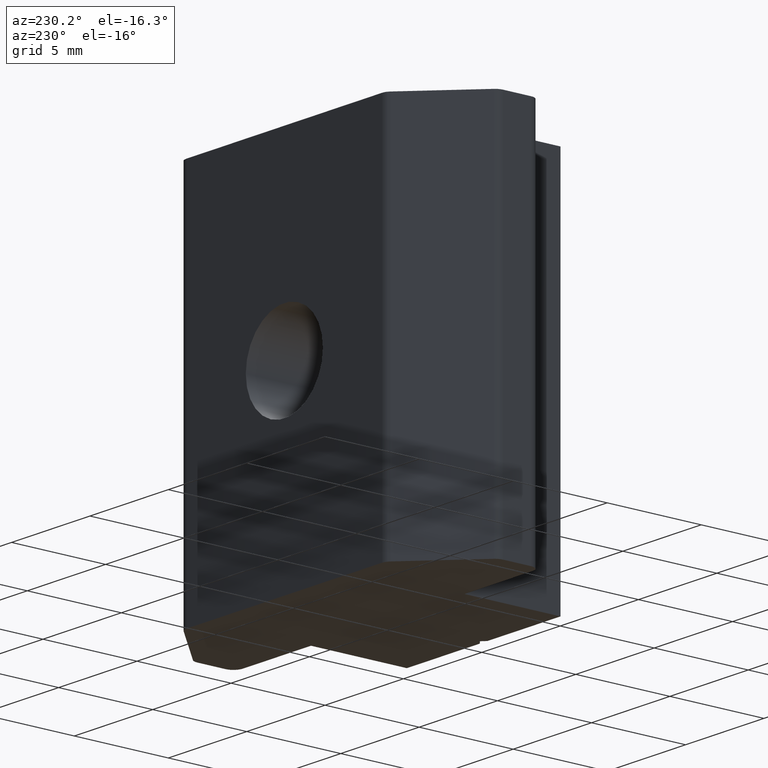
[diagram: clean part render]
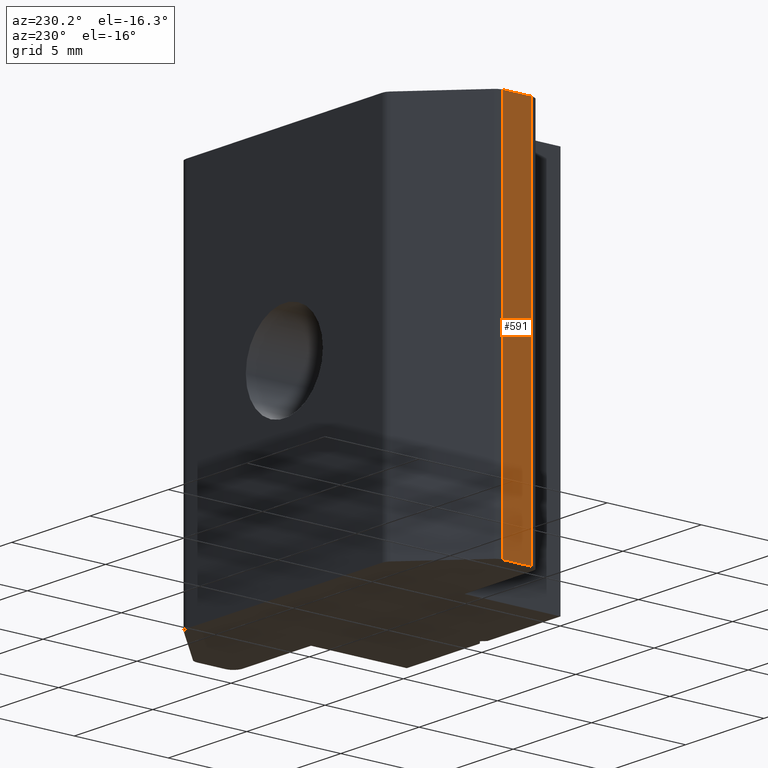
[diagram: same view with one face highlighted and labeled with its STEP entity id]
A machine part, auxiliary view. The second image highlights one B-rep face of the part: STEP entity #591.
In plain terms, the highlighted planar face has unit normal (-1, 0, 0).
Its self-contained STEP definition (entity closure, byte-faithful):
#26=PLANE('',#663);
#51=FACE_OUTER_BOUND('',#81,.T.);
#81=EDGE_LOOP('',(#492,#493,#494,#495));
#129=LINE('',#986,#184);
#142=LINE('',#1023,#197);
#143=LINE('',#1026,#198);
#144=LINE('',#1027,#199);
#184=VECTOR('',#767,10.);
#197=VECTOR('',#800,10.);
#198=VECTOR('',#803,10.);
#199=VECTOR('',#804,10.);
#270=VERTEX_POINT('',#983);
#271=VERTEX_POINT('',#985);
#285=VERTEX_POINT('',#1021);
#286=VERTEX_POINT('',#1025);
#343=EDGE_CURVE('',#270,#271,#129,.T.);
#362=EDGE_CURVE('',#270,#285,#142,.T.);
#363=EDGE_CURVE('',#286,#285,#143,.T.);
#364=EDGE_CURVE('',#271,#286,#144,.T.);
#492=ORIENTED_EDGE('',*,*,#362,.T.);
#493=ORIENTED_EDGE('',*,*,#363,.F.);
#494=ORIENTED_EDGE('',*,*,#364,.F.);
#495=ORIENTED_EDGE('',*,*,#343,.F.);
#591=ADVANCED_FACE('',(#51),#26,.T.);
#663=AXIS2_PLACEMENT_3D('',#1024,#801,#802);
#767=DIRECTION('',(0.,1.,0.));
#800=DIRECTION('',(0.,0.,1.));
#801=DIRECTION('center_axis',(-1.,0.,0.));
#802=DIRECTION('ref_axis',(0.,-1.,0.));
#803=DIRECTION('',(0.,-1.,0.));
#804=DIRECTION('',(0.,0.,1.));
#983=CARTESIAN_POINT('',(-9.75,0.5,-10.));
#985=CARTESIAN_POINT('',(-9.75,2.,-10.));
#986=CARTESIAN_POINT('',(-9.75,2.,-10.));
#1021=CARTESIAN_POINT('',(-9.75,0.5,10.));
#1023=CARTESIAN_POINT('',(-9.75,0.5,0.));
#1024=CARTESIAN_POINT('Origin',(-9.75,2.,0.));
#1025=CARTESIAN_POINT('',(-9.75,2.,10.));
#1026=CARTESIAN_POINT('',(-9.75,2.,10.));
#1027=CARTESIAN_POINT('',(-9.75,2.,0.));